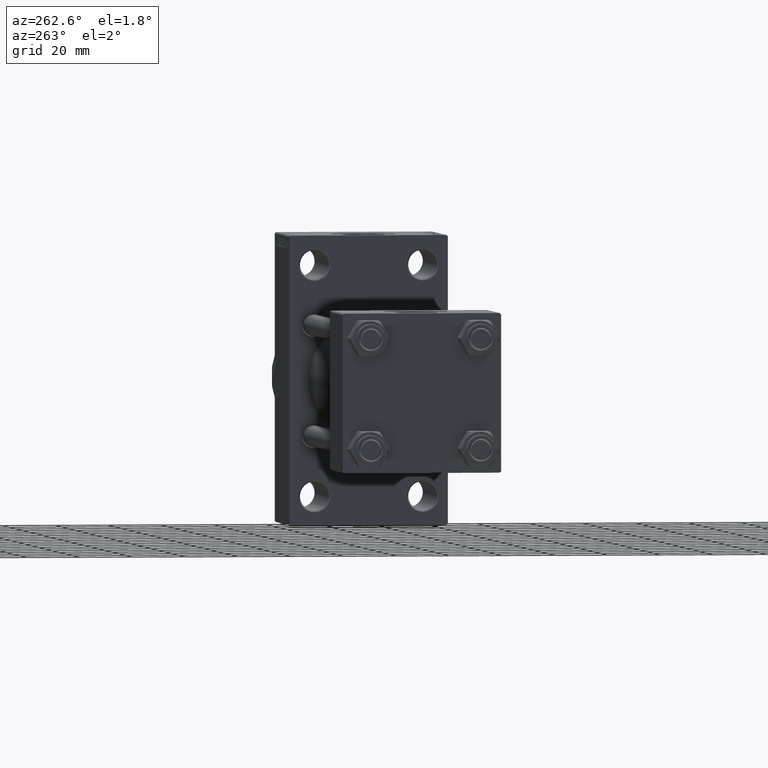
[diagram: clean part render]
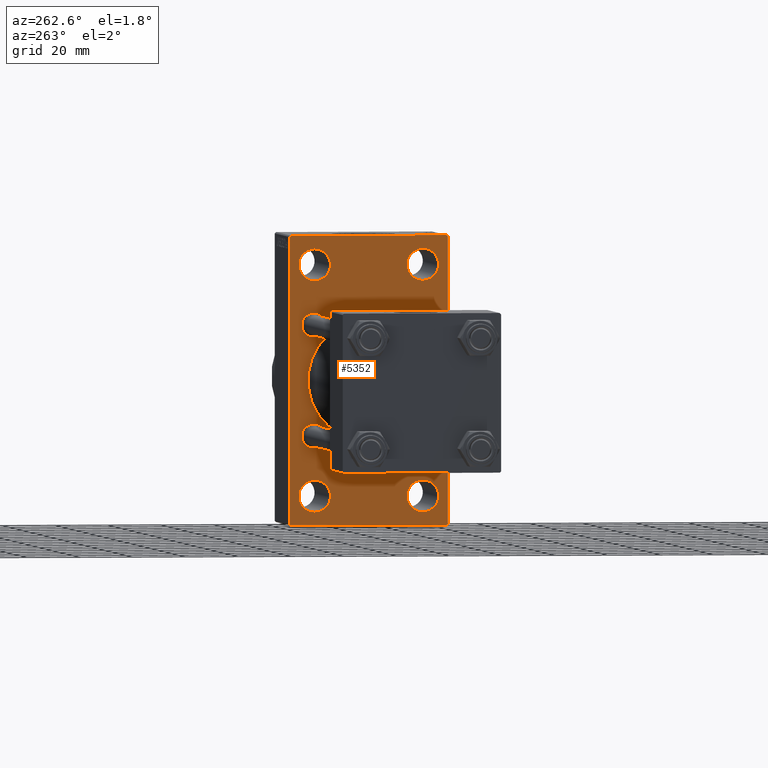
[diagram: same view with one face highlighted and labeled with its STEP entity id]
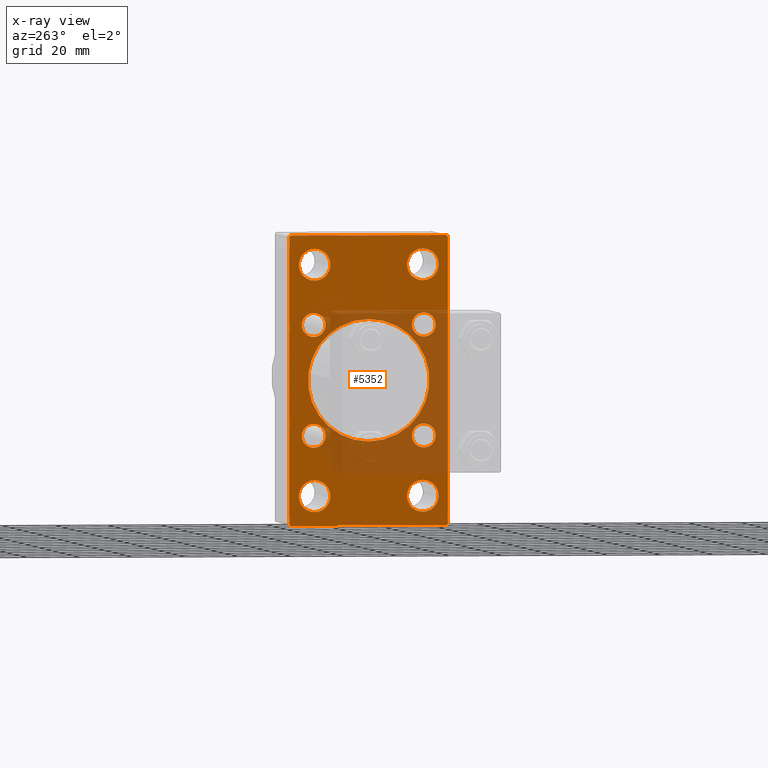
[diagram: x-ray of the same camera — body ghosted, the highlighted face saturated]
A machine part, auxiliary view. The second image highlights one B-rep face of the part: STEP entity #5352.
The next image is the same camera in x-ray: the body ghosted, the highlighted face saturated — about 29% of this face is hidden behind the body in this view.
In plain terms, the highlighted planar face has unit normal (-1, 0, 0).
Its self-contained STEP definition (entity closure, byte-faithful):
#295 = CARTESIAN_POINT ( 'NONE',  ( 155.0000000000000000, 20.84999999999999787, -20.85000000000000142 ) ) ;
#333 = AXIS2_PLACEMENT_3D ( 'NONE', #42096, #5560, #45444 ) ;
#567 = FACE_BOUND ( 'NONE', #43728, .T. ) ;
#719 = ORIENTED_EDGE ( 'NONE', *, *, #41061, .T. ) ;
#940 = EDGE_CURVE ( 'NONE', #17364, #35577, #35449, .T. ) ;
#958 = CIRCLE ( 'NONE', #37570, 23.00000000000000000 ) ;
#1227 = ORIENTED_EDGE ( 'NONE', *, *, #8044, .T. ) ;
#1342 = EDGE_CURVE ( 'NONE', #35577, #17364, #3409, .T. ) ;
#1346 = CARTESIAN_POINT ( 'NONE',  ( 155.0000000000000000, 29.49999999999999645, 54.49999999999999289 ) ) ;
#1547 = CARTESIAN_POINT ( 'NONE',  ( 155.0000000000000000, -20.50000000000000000, 43.50000000000000000 ) ) ;
#1559 = CARTESIAN_POINT ( 'NONE',  ( 155.0000000000000000, 41.99999999999915445, -42.00000000000149214 ) ) ;
#1970 = CARTESIAN_POINT ( 'NONE',  ( 155.0000000000000000, 29.99999999999999645, 54.49999999999999289 ) ) ;
#1987 = AXIS2_PLACEMENT_3D ( 'NONE', #25893, #33281, #43568 ) ;
#2183 = LINE ( 'NONE', #16760, #14743 ) ;
#2374 = DIRECTION ( 'NONE',  ( 0.000000000000000000, -0.7071067811865352493, 0.7071067811865597852 ) ) ;
#2434 = CIRCLE ( 'NONE', #45133, 4.500000000000007105 ) ;
#2511 = VERTEX_POINT ( 'NONE', #1346 ) ;
#2565 = VERTEX_POINT ( 'NONE', #23556 ) ;
#2744 = CARTESIAN_POINT ( 'NONE',  ( 155.0000000000000000, 20.84999999999999787, -20.85000000000000142 ) ) ;
#2840 = DIRECTION ( 'NONE',  ( 0.000000000000000000, 0.000000000000000000, 1.000000000000000000 ) ) ;
#3366 = EDGE_LOOP ( 'NONE', ( #28572, #4425 ) ) ;
#3409 = CIRCLE ( 'NONE', #39233, 5.999999999999921840 ) ;
#3688 = FACE_BOUND ( 'NONE', #10194, .T. ) ;
#3737 = CARTESIAN_POINT ( 'NONE',  ( 155.0000000000000000, -30.00000000000000000, 54.50000000000000000 ) ) ;
#4425 = ORIENTED_EDGE ( 'NONE', *, *, #7090, .T. ) ;
#4997 = CARTESIAN_POINT ( 'NONE',  ( 155.0000000000000000, -30.00000000000000000, -53.99999999999998579 ) ) ;
#5202 = CARTESIAN_POINT ( 'NONE',  ( 155.0000000000000000, -20.84999999999999076, 16.34999999999999787 ) ) ;
#5352 = ADVANCED_FACE ( 'NONE', ( #47162, #40457, #567, #18027, #7733, #15140, #11314, #3688, #39756, #46925 ), #18259, .T. ) ;
#5369 = ORIENTED_EDGE ( 'NONE', *, *, #17780, .T. ) ;
#5490 = DIRECTION ( 'NONE',  ( 0.000000000000000000, 0.000000000000000000, -1.000000000000000000 ) ) ;
#5560 = DIRECTION ( 'NONE',  ( 1.000000000000000000, -0.000000000000000000, 0.000000000000000000 ) ) ;
#5619 = DIRECTION ( 'NONE',  ( -0.000000000000000000, -0.7071067811865672237, -0.7071067811865279218 ) ) ;
#5925 = CIRCLE ( 'NONE', #36431, 4.500000000000007105 ) ;
#6327 = VECTOR ( 'NONE', #9607, 1000.000000000000114 ) ;
#6750 = CARTESIAN_POINT ( 'NONE',  ( 155.0000000000000000, 20.84999999999999787, 20.85000000000000142 ) ) ;
#7090 = EDGE_CURVE ( 'NONE', #24850, #36898, #40819, .T. ) ;
#7138 = AXIS2_PLACEMENT_3D ( 'NONE', #18432, #43977, #7442 ) ;
#7442 = DIRECTION ( 'NONE',  ( 0.000000000000000000, 0.000000000000000000, 1.000000000000000000 ) ) ;
#7733 = FACE_BOUND ( 'NONE', #9761, .T. ) ;
#7867 = ORIENTED_EDGE ( 'NONE', *, *, #11513, .T. ) ;
#8044 = EDGE_CURVE ( 'NONE', #25357, #39047, #14187, .T. ) ;
#8530 = ORIENTED_EDGE ( 'NONE', *, *, #14344, .T. ) ;
#8668 = CIRCLE ( 'NONE', #35357, 4.500000000000007105 ) ;
#8687 = VERTEX_POINT ( 'NONE', #9516 ) ;
#8717 = EDGE_CURVE ( 'NONE', #28852, #9359, #19549, .T. ) ;
#8806 = EDGE_LOOP ( 'NONE', ( #5369, #7867 ) ) ;
#9044 = DIRECTION ( 'NONE',  ( 0.000000000000000000, 0.000000000000000000, 1.000000000000000000 ) ) ;
#9315 = VERTEX_POINT ( 'NONE', #35673 ) ;
#9359 = VERTEX_POINT ( 'NONE', #17528 ) ;
#9386 = CARTESIAN_POINT ( 'NONE',  ( 155.0000000000000000, 20.50000000000000000, -43.50000000000000000 ) ) ;
#9516 = CARTESIAN_POINT ( 'NONE',  ( 155.0000000000000000, 29.99999999999999645, -53.99999999999999289 ) ) ;
#9605 = AXIS2_PLACEMENT_3D ( 'NONE', #9386, #19913, #41399 ) ;
#9607 = DIRECTION ( 'NONE',  ( -0.000000000000000000, 0.7071067811865451302, 0.7071067811865500152 ) ) ;
#9761 = EDGE_LOOP ( 'NONE', ( #22670, #8530 ) ) ;
#9813 = CARTESIAN_POINT ( 'NONE',  ( 155.0000000000000000, 20.50000000000000000, 37.50000000000007816 ) ) ;
#9953 = EDGE_LOOP ( 'NONE', ( #10532, #36689 ) ) ;
#10070 = DIRECTION ( 'NONE',  ( 0.000000000000000000, 0.7071067811865474617, -0.7071067811865474617 ) ) ;
#10086 = ORIENTED_EDGE ( 'NONE', *, *, #26488, .T. ) ;
#10094 = DIRECTION ( 'NONE',  ( 0.000000000000000000, 0.000000000000000000, 1.000000000000000000 ) ) ;
#10194 = EDGE_LOOP ( 'NONE', ( #23299, #43935 ) ) ;
#10276 = AXIS2_PLACEMENT_3D ( 'NONE', #21130, #21361, #43082 ) ;
#10409 = DIRECTION ( 'NONE',  ( 1.000000000000000000, 0.000000000000000000, 0.000000000000000000 ) ) ;
#10532 = ORIENTED_EDGE ( 'NONE', *, *, #11212, .T. ) ;
#10692 = VECTOR ( 'NONE', #45436, 1000.000000000000000 ) ;
#10855 = DIRECTION ( 'NONE',  ( 0.000000000000000000, 0.000000000000000000, -1.000000000000000000 ) ) ;
#10981 = DIRECTION ( 'NONE',  ( 0.000000000000000000, 0.000000000000000000, -1.000000000000000000 ) ) ;
#11049 = VERTEX_POINT ( 'NONE', #45541 ) ;
#11212 = EDGE_CURVE ( 'NONE', #2565, #32388, #37143, .T. ) ;
#11219 = CARTESIAN_POINT ( 'NONE',  ( 155.0000000000000000, 29.99999999999999645, 54.49999999999999289 ) ) ;
#11266 = VECTOR ( 'NONE', #10981, 1000.000000000000000 ) ;
#11314 = FACE_BOUND ( 'NONE', #43613, .T. ) ;
#11513 = EDGE_CURVE ( 'NONE', #38728, #20792, #5925, .T. ) ;
#11895 = CARTESIAN_POINT ( 'NONE',  ( 155.0000000000000000, 29.49999999999996803, -54.49999999999999289 ) ) ;
#12277 = EDGE_CURVE ( 'NONE', #11049, #8687, #15043, .T. ) ;
#12366 = EDGE_CURVE ( 'NONE', #31552, #16929, #47114, .T. ) ;
#12400 = DIRECTION ( 'NONE',  ( 0.000000000000000000, 0.000000000000000000, 1.000000000000000000 ) ) ;
#12475 = LINE ( 'NONE', #1970, #10692 ) ;
#12611 = CARTESIAN_POINT ( 'NONE',  ( 155.0000000000000000, -20.50000000000000000, -43.50000000000000000 ) ) ;
#12962 = VECTOR ( 'NONE', #2374, 1000.000000000000000 ) ;
#13123 = LINE ( 'NONE', #20773, #12962 ) ;
#13938 = CARTESIAN_POINT ( 'NONE',  ( 155.0000000000000000, 20.50000000000000000, 43.50000000000000000 ) ) ;
#14187 = CIRCLE ( 'NONE', #9605, 5.999999999999921840 ) ;
#14344 = EDGE_CURVE ( 'NONE', #19957, #19379, #30382, .T. ) ;
#14488 = VERTEX_POINT ( 'NONE', #19528 ) ;
#14588 = ORIENTED_EDGE ( 'NONE', *, *, #23892, .T. ) ;
#14743 = VECTOR ( 'NONE', #10070, 1000.000000000000114 ) ;
#14790 = EDGE_CURVE ( 'NONE', #29579, #22072, #36455, .T. ) ;
#15043 = LINE ( 'NONE', #11219, #11266 ) ;
#15140 = FACE_BOUND ( 'NONE', #8806, .T. ) ;
#15254 = CIRCLE ( 'NONE', #45755, 5.999999999999921840 ) ;
#15289 = ORIENTED_EDGE ( 'NONE', *, *, #12366, .T. ) ;
#15727 = AXIS2_PLACEMENT_3D ( 'NONE', #35554, #46771, #2840 ) ;
#16350 = VERTEX_POINT ( 'NONE', #35691 ) ;
#16688 = EDGE_CURVE ( 'NONE', #14488, #22072, #13123, .T. ) ;
#16752 = AXIS2_PLACEMENT_3D ( 'NONE', #1547, #30444, #45723 ) ;
#16760 = CARTESIAN_POINT ( 'NONE',  ( 155.0000000000000000, 41.99999999999998579, 41.99999999999998579 ) ) ;
#16929 = VERTEX_POINT ( 'NONE', #26225 ) ;
#17251 = ORIENTED_EDGE ( 'NONE', *, *, #27309, .T. ) ;
#17291 = EDGE_CURVE ( 'NONE', #32388, #2565, #44967, .T. ) ;
#17364 = VERTEX_POINT ( 'NONE', #42616 ) ;
#17528 = CARTESIAN_POINT ( 'NONE',  ( 155.0000000000000000, -20.84999999999999076, -16.34999999999999787 ) ) ;
#17650 = EDGE_CURVE ( 'NONE', #2511, #9315, #12475, .T. ) ;
#17780 = EDGE_CURVE ( 'NONE', #20792, #38728, #32065, .T. ) ;
#17878 = CIRCLE ( 'NONE', #10276, 5.999999999999921840 ) ;
#18027 = FACE_BOUND ( 'NONE', #32721, .T. ) ;
#18259 = PLANE ( 'NONE',  #1987 ) ;
#18432 = CARTESIAN_POINT ( 'NONE',  ( 155.0000000000000000, -20.84999999999999076, -20.85000000000000497 ) ) ;
#19081 = CARTESIAN_POINT ( 'NONE',  ( 155.0000000000000000, 2.146024240737016609E-16, -23.00000000000000000 ) ) ;
#19379 = VERTEX_POINT ( 'NONE', #42850 ) ;
#19528 = CARTESIAN_POINT ( 'NONE',  ( 155.0000000000000000, -29.50000000000000355, -54.50000000000000000 ) ) ;
#19549 = CIRCLE ( 'NONE', #15727, 4.500000000000007105 ) ;
#19913 = DIRECTION ( 'NONE',  ( 1.000000000000000000, -0.000000000000000000, 0.000000000000000000 ) ) ;
#19957 = VERTEX_POINT ( 'NONE', #5202 ) ;
#20243 = AXIS2_PLACEMENT_3D ( 'NONE', #42634, #10409, #10855 ) ;
#20437 = LINE ( 'NONE', #1559, #38159 ) ;
#20554 = DIRECTION ( 'NONE',  ( 0.000000000000000000, -1.000000000000000000, -1.156482317317871478E-16 ) ) ;
#20773 = CARTESIAN_POINT ( 'NONE',  ( 155.0000000000000000, -42.00000000000051159, -41.99999999999905498 ) ) ;
#20792 = VERTEX_POINT ( 'NONE', #36059 ) ;
#20903 = ORIENTED_EDGE ( 'NONE', *, *, #940, .T. ) ;
#20917 = CARTESIAN_POINT ( 'NONE',  ( 155.0000000000000000, 20.50000000000000000, -37.50000000000007816 ) ) ;
#21130 = CARTESIAN_POINT ( 'NONE',  ( 155.0000000000000000, 20.50000000000000000, -43.50000000000000000 ) ) ;
#21361 = DIRECTION ( 'NONE',  ( 1.000000000000000000, -0.000000000000000000, 0.000000000000000000 ) ) ;
#21627 = CIRCLE ( 'NONE', #7138, 4.500000000000007105 ) ;
#22072 = VERTEX_POINT ( 'NONE', #4997 ) ;
#22670 = ORIENTED_EDGE ( 'NONE', *, *, #35547, .T. ) ;
#23299 = ORIENTED_EDGE ( 'NONE', *, *, #34528, .T. ) ;
#23556 = CARTESIAN_POINT ( 'NONE',  ( 155.0000000000000000, -20.50000000000000000, 49.49999999999992184 ) ) ;
#23892 = EDGE_CURVE ( 'NONE', #41712, #16350, #29824, .T. ) ;
#24128 = LINE ( 'NONE', #27465, #39671 ) ;
#24419 = DIRECTION ( 'NONE',  ( 1.000000000000000000, -0.000000000000000000, 0.000000000000000000 ) ) ;
#24850 = VERTEX_POINT ( 'NONE', #19081 ) ;
#25357 = VERTEX_POINT ( 'NONE', #20917 ) ;
#25893 = CARTESIAN_POINT ( 'NONE',  ( 155.0000000000000000, 0.000000000000000000, 0.000000000000000000 ) ) ;
#25930 = CARTESIAN_POINT ( 'NONE',  ( 155.0000000000000000, -20.50000000000000000, -37.50000000000007816 ) ) ;
#26020 = AXIS2_PLACEMENT_3D ( 'NONE', #2744, #32338, #28049 ) ;
#26111 = ORIENTED_EDGE ( 'NONE', *, *, #17650, .F. ) ;
#26225 = CARTESIAN_POINT ( 'NONE',  ( 155.0000000000000000, 20.50000000000000000, 49.49999999999992184 ) ) ;
#26352 = CARTESIAN_POINT ( 'NONE',  ( 155.0000000000000000, -2.602085213965210642E-15, 23.00000000000000000 ) ) ;
#26488 = EDGE_CURVE ( 'NONE', #16929, #31552, #15254, .T. ) ;
#26507 = AXIS2_PLACEMENT_3D ( 'NONE', #45335, #31002, #9044 ) ;
#26553 = DIRECTION ( 'NONE',  ( 1.000000000000000000, -0.000000000000000000, 0.000000000000000000 ) ) ;
#26642 = ORIENTED_EDGE ( 'NONE', *, *, #1342, .T. ) ;
#26971 = CARTESIAN_POINT ( 'NONE',  ( 155.0000000000000000, -20.84999999999999076, 20.85000000000000497 ) ) ;
#27167 = EDGE_CURVE ( 'NONE', #41638, #14488, #24128, .T. ) ;
#27180 = DIRECTION ( 'NONE',  ( 1.000000000000000000, -0.000000000000000000, 0.000000000000000000 ) ) ;
#27309 = EDGE_CURVE ( 'NONE', #8687, #41638, #20437, .T. ) ;
#27343 = ORIENTED_EDGE ( 'NONE', *, *, #27167, .T. ) ;
#27465 = CARTESIAN_POINT ( 'NONE',  ( 155.0000000000000000, 29.99999999999999645, -54.49999999999999289 ) ) ;
#27515 = DIRECTION ( 'NONE',  ( 1.000000000000000000, -0.000000000000000000, 0.000000000000000000 ) ) ;
#27792 = CARTESIAN_POINT ( 'NONE',  ( 155.0000000000000000, -20.50000000000000000, 37.50000000000007816 ) ) ;
#27991 = LINE ( 'NONE', #28700, #6327 ) ;
#28049 = DIRECTION ( 'NONE',  ( 0.000000000000000000, 0.000000000000000000, 1.000000000000000000 ) ) ;
#28572 = ORIENTED_EDGE ( 'NONE', *, *, #33649, .T. ) ;
#28700 = CARTESIAN_POINT ( 'NONE',  ( 155.0000000000000000, -42.00000000000008527, 41.99999999999979394 ) ) ;
#28852 = VERTEX_POINT ( 'NONE', #29589 ) ;
#28953 = DIRECTION ( 'NONE',  ( 0.000000000000000000, 0.000000000000000000, 1.000000000000000000 ) ) ;
#29262 = DIRECTION ( 'NONE',  ( 1.000000000000000000, -0.000000000000000000, 0.000000000000000000 ) ) ;
#29579 = VERTEX_POINT ( 'NONE', #39761 ) ;
#29589 = CARTESIAN_POINT ( 'NONE',  ( 155.0000000000000000, -20.84999999999999076, -25.35000000000001208 ) ) ;
#29824 = CIRCLE ( 'NONE', #26020, 4.500000000000007105 ) ;
#30382 = CIRCLE ( 'NONE', #32674, 4.500000000000007105 ) ;
#30444 = DIRECTION ( 'NONE',  ( 1.000000000000000000, -0.000000000000000000, 0.000000000000000000 ) ) ;
#31002 = DIRECTION ( 'NONE',  ( 1.000000000000000000, -0.000000000000000000, 0.000000000000000000 ) ) ;
#31411 = EDGE_CURVE ( 'NONE', #16350, #41712, #2434, .T. ) ;
#31552 = VERTEX_POINT ( 'NONE', #9813 ) ;
#32027 = CARTESIAN_POINT ( 'NONE',  ( 155.0000000000000000, 20.84999999999999787, 16.34999999999999432 ) ) ;
#32065 = CIRCLE ( 'NONE', #36635, 4.500000000000007105 ) ;
#32338 = DIRECTION ( 'NONE',  ( 1.000000000000000000, -0.000000000000000000, 0.000000000000000000 ) ) ;
#32388 = VERTEX_POINT ( 'NONE', #27792 ) ;
#32674 = AXIS2_PLACEMENT_3D ( 'NONE', #26971, #45119, #12400 ) ;
#32721 = EDGE_LOOP ( 'NONE', ( #10086, #15289 ) ) ;
#32867 = DIRECTION ( 'NONE',  ( 0.000000000000000000, 0.000000000000000000, -1.000000000000000000 ) ) ;
#33281 = DIRECTION ( 'NONE',  ( -1.000000000000000000, 0.000000000000000000, -0.000000000000000000 ) ) ;
#33398 = EDGE_CURVE ( 'NONE', #29579, #9315, #27991, .T. ) ;
#33649 = EDGE_CURVE ( 'NONE', #36898, #24850, #958, .T. ) ;
#34452 = CARTESIAN_POINT ( 'NONE',  ( 155.0000000000000000, -20.50000000000000000, 43.50000000000000000 ) ) ;
#34514 = ORIENTED_EDGE ( 'NONE', *, *, #33398, .T. ) ;
#34528 = EDGE_CURVE ( 'NONE', #9359, #28852, #21627, .T. ) ;
#35019 = EDGE_CURVE ( 'NONE', #2511, #11049, #2183, .T. ) ;
#35314 = CARTESIAN_POINT ( 'NONE',  ( 155.0000000000000000, 20.50000000000000000, -49.49999999999992184 ) ) ;
#35357 = AXIS2_PLACEMENT_3D ( 'NONE', #44069, #29262, #40257 ) ;
#35449 = CIRCLE ( 'NONE', #333, 5.999999999999921840 ) ;
#35547 = EDGE_CURVE ( 'NONE', #19379, #19957, #8668, .T. ) ;
#35554 = CARTESIAN_POINT ( 'NONE',  ( 155.0000000000000000, -20.84999999999999076, -20.85000000000000497 ) ) ;
#35577 = VERTEX_POINT ( 'NONE', #25930 ) ;
#35673 = CARTESIAN_POINT ( 'NONE',  ( 155.0000000000000000, -29.49999999999997513, 54.50000000000000000 ) ) ;
#35691 = CARTESIAN_POINT ( 'NONE',  ( 155.0000000000000000, 20.84999999999999787, -25.35000000000000853 ) ) ;
#36059 = CARTESIAN_POINT ( 'NONE',  ( 155.0000000000000000, 20.84999999999999787, 25.35000000000000853 ) ) ;
#36342 = ORIENTED_EDGE ( 'NONE', *, *, #12277, .T. ) ;
#36431 = AXIS2_PLACEMENT_3D ( 'NONE', #46624, #24419, #43273 ) ;
#36455 = LINE ( 'NONE', #3737, #43394 ) ;
#36635 = AXIS2_PLACEMENT_3D ( 'NONE', #6750, #42803, #10094 ) ;
#36689 = ORIENTED_EDGE ( 'NONE', *, *, #17291, .T. ) ;
#36898 = VERTEX_POINT ( 'NONE', #26352 ) ;
#37143 = CIRCLE ( 'NONE', #45522, 5.999999999999921840 ) ;
#37570 = AXIS2_PLACEMENT_3D ( 'NONE', #38205, #37968, #5490 ) ;
#37968 = DIRECTION ( 'NONE',  ( 1.000000000000000000, 0.000000000000000000, 0.000000000000000000 ) ) ;
#38159 = VECTOR ( 'NONE', #5619, 1000.000000000000000 ) ;
#38205 = CARTESIAN_POINT ( 'NONE',  ( 155.0000000000000000, -2.602085213965210642E-15, 0.000000000000000000 ) ) ;
#38381 = CARTESIAN_POINT ( 'NONE',  ( 155.0000000000000000, 20.84999999999999787, -16.34999999999999432 ) ) ;
#38728 = VERTEX_POINT ( 'NONE', #32027 ) ;
#39047 = VERTEX_POINT ( 'NONE', #35314 ) ;
#39233 = AXIS2_PLACEMENT_3D ( 'NONE', #12611, #27180, #41283 ) ;
#39242 = DIRECTION ( 'NONE',  ( 1.000000000000000000, -0.000000000000000000, 0.000000000000000000 ) ) ;
#39671 = VECTOR ( 'NONE', #20554, 1000.000000000000000 ) ;
#39756 = FACE_BOUND ( 'NONE', #3366, .T. ) ;
#39761 = CARTESIAN_POINT ( 'NONE',  ( 155.0000000000000000, -30.00000000000000000, 53.99999999999997158 ) ) ;
#40257 = DIRECTION ( 'NONE',  ( 0.000000000000000000, 0.000000000000000000, 1.000000000000000000 ) ) ;
#40457 = FACE_BOUND ( 'NONE', #43961, .T. ) ;
#40819 = CIRCLE ( 'NONE', #20243, 23.00000000000000000 ) ;
#41061 = EDGE_CURVE ( 'NONE', #39047, #25357, #17878, .T. ) ;
#41283 = DIRECTION ( 'NONE',  ( 0.000000000000000000, 0.000000000000000000, 1.000000000000000000 ) ) ;
#41399 = DIRECTION ( 'NONE',  ( 0.000000000000000000, 0.000000000000000000, 1.000000000000000000 ) ) ;
#41638 = VERTEX_POINT ( 'NONE', #11895 ) ;
#41712 = VERTEX_POINT ( 'NONE', #38381 ) ;
#42087 = DIRECTION ( 'NONE',  ( 0.000000000000000000, 0.000000000000000000, 1.000000000000000000 ) ) ;
#42096 = CARTESIAN_POINT ( 'NONE',  ( 155.0000000000000000, -20.50000000000000000, -43.50000000000000000 ) ) ;
#42318 = EDGE_LOOP ( 'NONE', ( #27343, #43160, #42849, #34514, #26111, #44552, #36342, #17251 ) ) ;
#42616 = CARTESIAN_POINT ( 'NONE',  ( 155.0000000000000000, -20.50000000000000000, -49.49999999999992184 ) ) ;
#42634 = CARTESIAN_POINT ( 'NONE',  ( 155.0000000000000000, -2.602085213965210642E-15, 0.000000000000000000 ) ) ;
#42679 = ORIENTED_EDGE ( 'NONE', *, *, #31411, .T. ) ;
#42803 = DIRECTION ( 'NONE',  ( 1.000000000000000000, -0.000000000000000000, 0.000000000000000000 ) ) ;
#42849 = ORIENTED_EDGE ( 'NONE', *, *, #14790, .F. ) ;
#42850 = CARTESIAN_POINT ( 'NONE',  ( 155.0000000000000000, -20.84999999999999076, 25.35000000000001208 ) ) ;
#43082 = DIRECTION ( 'NONE',  ( 0.000000000000000000, 0.000000000000000000, 1.000000000000000000 ) ) ;
#43160 = ORIENTED_EDGE ( 'NONE', *, *, #16688, .T. ) ;
#43273 = DIRECTION ( 'NONE',  ( 0.000000000000000000, 0.000000000000000000, 1.000000000000000000 ) ) ;
#43394 = VECTOR ( 'NONE', #32867, 1000.000000000000000 ) ;
#43568 = DIRECTION ( 'NONE',  ( -0.000000000000000000, 0.000000000000000000, 1.000000000000000000 ) ) ;
#43613 = EDGE_LOOP ( 'NONE', ( #14588, #42679 ) ) ;
#43728 = EDGE_LOOP ( 'NONE', ( #1227, #719 ) ) ;
#43935 = ORIENTED_EDGE ( 'NONE', *, *, #8717, .T. ) ;
#43961 = EDGE_LOOP ( 'NONE', ( #26642, #20903 ) ) ;
#43977 = DIRECTION ( 'NONE',  ( 1.000000000000000000, -0.000000000000000000, 0.000000000000000000 ) ) ;
#44069 = CARTESIAN_POINT ( 'NONE',  ( 155.0000000000000000, -20.84999999999999076, 20.85000000000000497 ) ) ;
#44552 = ORIENTED_EDGE ( 'NONE', *, *, #35019, .T. ) ;
#44689 = DIRECTION ( 'NONE',  ( 0.000000000000000000, 0.000000000000000000, 1.000000000000000000 ) ) ;
#44967 = CIRCLE ( 'NONE', #16752, 5.999999999999921840 ) ;
#45119 = DIRECTION ( 'NONE',  ( 1.000000000000000000, -0.000000000000000000, 0.000000000000000000 ) ) ;
#45133 = AXIS2_PLACEMENT_3D ( 'NONE', #295, #26553, #44689 ) ;
#45335 = CARTESIAN_POINT ( 'NONE',  ( 155.0000000000000000, 20.50000000000000000, 43.50000000000000000 ) ) ;
#45436 = DIRECTION ( 'NONE',  ( 0.000000000000000000, -1.000000000000000000, 1.156482317317871478E-16 ) ) ;
#45444 = DIRECTION ( 'NONE',  ( 0.000000000000000000, 0.000000000000000000, 1.000000000000000000 ) ) ;
#45522 = AXIS2_PLACEMENT_3D ( 'NONE', #34452, #27515, #42087 ) ;
#45541 = CARTESIAN_POINT ( 'NONE',  ( 155.0000000000000000, 29.99999999999999645, 53.99999999999999289 ) ) ;
#45723 = DIRECTION ( 'NONE',  ( 0.000000000000000000, 0.000000000000000000, 1.000000000000000000 ) ) ;
#45755 = AXIS2_PLACEMENT_3D ( 'NONE', #13938, #39242, #28953 ) ;
#46624 = CARTESIAN_POINT ( 'NONE',  ( 155.0000000000000000, 20.84999999999999787, 20.85000000000000142 ) ) ;
#46771 = DIRECTION ( 'NONE',  ( 1.000000000000000000, -0.000000000000000000, 0.000000000000000000 ) ) ;
#46925 = FACE_OUTER_BOUND ( 'NONE', #42318, .T. ) ;
#47114 = CIRCLE ( 'NONE', #26507, 5.999999999999921840 ) ;
#47162 = FACE_BOUND ( 'NONE', #9953, .T. ) ;